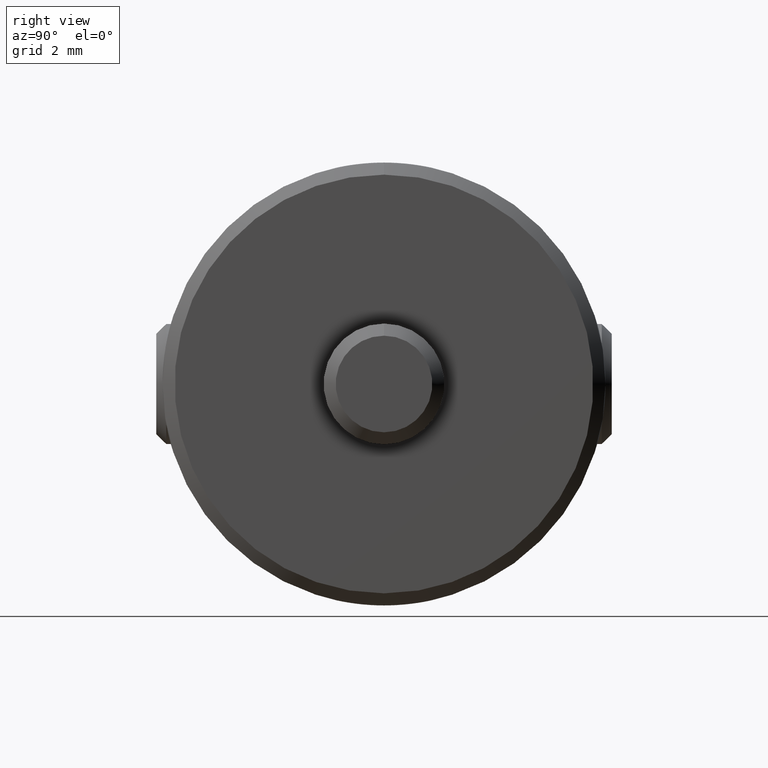
[diagram: clean part render]
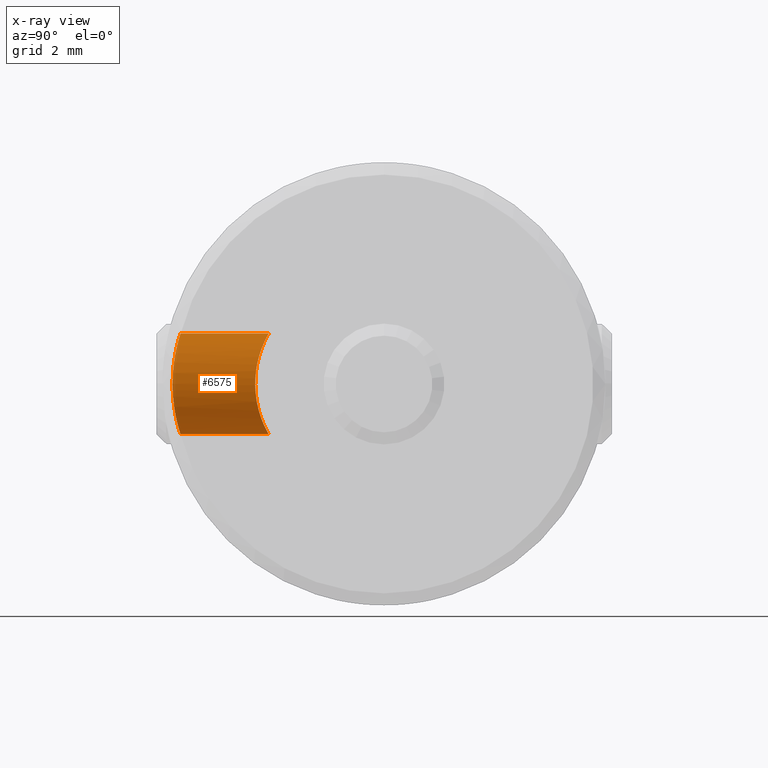
[diagram: x-ray — body ghosted, one internal face saturated and labeled with its STEP entity id]
A machine part, right view, then the same camera in x-ray: the body is ghosted and one INTERNAL B-rep face — a face not visible from any outside direction — is saturated and labeled: STEP entity #6575.
In plain terms, the highlighted cylindrical surface (partial cylindrical patch) has radius 1.25 mm, axis along (-0, 1, -0).
Its self-contained STEP definition (entity closure, byte-faithful):
#28 = CARTESIAN_POINT ( 'NONE',  ( 3.807656620942495795, -5.138820604852585738, 0.9540510737781999762 ) ) ;
#52 = CARTESIAN_POINT ( 'NONE',  ( 3.872746485565921937, -5.152552261291399205, 0.8950206501330392195 ) ) ;
#77 = CARTESIAN_POINT ( 'NONE',  ( 3.863363999183087039, -5.150517279434065898, 0.9039948540260634990 ) ) ;
#105 = CARTESIAN_POINT ( 'NONE',  ( 3.326968187581064829, -5.068879209435863231, 1.209355656351140507 ) ) ;
#253 = CARTESIAN_POINT ( 'NONE',  ( 3.000000000000000888, -5.056071321409050690, 1.250000000000690559 ) ) ;
#273 = CARTESIAN_POINT ( 'NONE',  ( 3.000000000000000000, 5.500000000000000000, -1.249999999999992450 ) ) ;
#299 = EDGE_LOOP ( 'NONE', ( #4257, #6626, #2623, #5924, #1589 ) ) ;
#376 = CARTESIAN_POINT ( 'NONE',  ( 4.092607978984754702, -5.206505076088969730, 0.6075148959232712365 ) ) ;
#399 = B_SPLINE_CURVE_WITH_KNOTS ( 'NONE', 3,
 ( #5138, #1344, #7044, #7738, #5832, #7101, #6413, #2600, #4554, #7715, #5109, #767, #1957, #3247, #3301, #3895, #5184, #7680, #3929, #3824, #1400, #2037, #3871, #2660 ),
 .UNSPECIFIED., .F., .F.,
 ( 4, 2, 2, 2, 2, 2, 2, 2, 2, 2, 2, 4 ),
 ( 0.003975746136738166417, 0.004223791030582452546, 0.004471835924426737809, 0.004967925712115308333, 0.005464015499803877990, 0.005960105287492448514, 0.006456195075181018171, 0.006952284862869587828, 0.007200329756713873958, 0.007448374650558159220, 0.007696419544402444482, 0.007944464438246730612 ),
 .UNSPECIFIED. ) ;
#490 = CARTESIAN_POINT ( 'NONE',  ( 3.081312100431888634, -5.056709579597552739, -1.248029379571401032 ) ) ;
#536 = CARTESIAN_POINT ( 'NONE',  ( 3.163112954550083344, -5.059266375580790509, -1.239993207242670481 ) ) ;
#554 = CARTESIAN_POINT ( 'NONE',  ( 4.207543473384245836, -5.239230510651899486, 0.3254689865355108735 ) ) ;
#561 = LINE ( 'NONE', #273, #3415 ) ;
#588 = CARTESIAN_POINT ( 'NONE',  ( 3.917861725960889441, -5.162668260487365934, -0.8487873995392388737 ) ) ;
#597 = CARTESIAN_POINT ( 'NONE',  ( 3.914015547526260352, -5.161795366773358040, 0.8528285519752671906 ) ) ;
#622 = CARTESIAN_POINT ( 'NONE',  ( 3.704700627875636254, -5.119180918749436593, 1.032480110571077248 ) ) ;
#639 = CARTESIAN_POINT ( 'NONE',  ( 3.961947814056586470, -5.173064103227688726, -0.7982403022763400191 ) ) ;
#674 = CARTESIAN_POINT ( 'NONE',  ( 3.624808031678275366, -5.105747922533864447, 1.082687682323920653 ) ) ;
#712 = B_SPLINE_CURVE_WITH_KNOTS ( 'NONE', 3,
 ( #2984, #5492, #490, #536, #5545, #1701, #7452, #2378, #3654, #2353, #8078, #6162, #8036, #6215, #4913, #6840, #3035, #4246, #7427, #4962, #6245, #3625, #8057, #2421, #4269, #7475, #1117, #5594, #3058, #1744, #6816, #4290, #4938, #1143, #5566, #3082, #4480, #5089, #6887, #4367, #588, #1880, #2500, #2553, #3747, #639, #6313, #8145, #1849, #5701, #6913, #6993, #6367, #1215, #3771, #7577, #5646, #5065, #7524 ),
 .UNSPECIFIED., .F., .F.,
 ( 4, 2, 2, 2, 2, 2, 2, 2, 1, 2, 2, 2, 1, 2, 2, 1, 1, 2, 2, 2, 2, 2, 2, 1, 2, 2, 2, 2, 2, 2, 2, 4 ),
 ( 0.2501103576101096904, 0.2657284602594784384, 0.2813465629088471864, 0.2969646655582159345, 0.3047737168829002252, 0.3125827682075845160, 0.3203918195322688067, 0.3282008708569530975, 0.3360099221816373882, 0.3399144478439795058, 0.3438189735063216790, 0.3516280248310056922, 0.3555325504933476988, 0.3574848133245187576, 0.3594370761556897609, 0.3633416018180317675, 0.3652938646492028818, 0.3662699960647883834, 0.3672461274803738851, 0.3711506531427158362, 0.3731029159738868395, 0.3750551788050578983, 0.3828642301297419115, 0.3867687557920840291, 0.3887210186232549214, 0.3906732814544258692, 0.3984823327791096048, 0.4023868584414514449, 0.4062913841037932849, 0.4375275894025288936, 0.4687637947012644468, 0.5000000000000000000 ),
 .UNSPECIFIED. ) ;
#766 = DIRECTION ( 'NONE',  ( -0.000000000000000000, 1.000000000000000000, -0.000000000000000000 ) ) ;
#767 = CARTESIAN_POINT ( 'NONE',  ( 4.250141954386941201, -3.200070977173732345, 0.1644182679636552180 ) ) ;
#1054 = CARTESIAN_POINT ( 'NONE',  ( 4.162023432357568886, -5.225909643993344567, 0.4610761975432054460 ) ) ;
#1117 = CARTESIAN_POINT ( 'NONE',  ( 3.789290016032976105, -5.135128347746620747, -0.9692994019449499010 ) ) ;
#1124 = LINE ( 'NONE', #6464, #8129 ) ;
#1127 = CARTESIAN_POINT ( 'NONE',  ( 3.901578929474110335, -5.158979647184368744, 0.8658484938869897007 ) ) ;
#1143 = CARTESIAN_POINT ( 'NONE',  ( 3.842843411040724799, -5.146123268424382502, -0.9231139081089994036 ) ) ;
#1176 = CARTESIAN_POINT ( 'NONE',  ( 4.028692055829547591, -5.189635382823536425, 0.7103704597937936516 ) ) ;
#1215 = CARTESIAN_POINT ( 'NONE',  ( 4.121975128649708608, -5.214465385080142568, -0.5573647964946244482 ) ) ;
#1300 = CARTESIAN_POINT ( 'NONE',  ( 3.553116670996967041, -5.095007096507594646, 1.121152473155692109 ) ) ;
#1330 = CARTESIAN_POINT ( 'NONE',  ( 3.841666716284549032, -5.145875230582690918, 0.9241781868662711785 ) ) ;
#1344 = CARTESIAN_POINT ( 'NONE',  ( 3.082747710167413224, -2.865063509461102331, -1.249999999999992450 ) ) ;
#1400 = CARTESIAN_POINT ( 'NONE',  ( 3.330331892373990410, -2.888641686364561423, 1.208389420029013506 ) ) ;
#1589 = ORIENTED_EDGE ( 'NONE', *, *, #4991, .F. ) ;
#1688 = CARTESIAN_POINT ( 'NONE',  ( 4.146883987747501443, -5.221582959937293822, 0.4975407882147522276 ) ) ;
#1701 = CARTESIAN_POINT ( 'NONE',  ( 3.284221456158896046, -5.066195876946151699, -1.217916815122412455 ) ) ;
#1744 = CARTESIAN_POINT ( 'NONE',  ( 3.824729840108255896, -5.142324480682506582, -0.9393472916198954970 ) ) ;
#1750 = DIRECTION ( 'NONE',  ( -0.000000000000000000, 1.000000000000000000, -0.000000000000000000 ) ) ;
#1770 = VERTEX_POINT ( 'NONE', #4663 ) ;
#1807 = CARTESIAN_POINT ( 'NONE',  ( 3.990126188231034821, -5.179926590051992186, 0.7631187995574089111 ) ) ;
#1849 = CARTESIAN_POINT ( 'NONE',  ( 4.010876025426744818, -5.185111522412381824, -0.7353453226970662060 ) ) ;
#1862 = CARTESIAN_POINT ( 'NONE',  ( 3.000000000000000888, -5.056071321409050690, 1.250000000000690559 ) ) ;
#1880 = CARTESIAN_POINT ( 'NONE',  ( 3.938123893321469726, -5.167393408183423631, -0.8261513845412800094 ) ) ;
#1957 = CARTESIAN_POINT ( 'NONE',  ( 4.216490041704343383, -3.182783350853660931, 0.3311210459275517048 ) ) ;
#1973 = CARTESIAN_POINT ( 'NONE',  ( 3.841411229033891761, -5.145821660562155841, 0.9244076045014466558 ) ) ;
#2037 = CARTESIAN_POINT ( 'NONE',  ( 3.168436535701718793, -2.870116157889371244, 1.241351393843918460 ) ) ;
#2339 = CARTESIAN_POINT ( 'NONE',  ( 4.249999554110686972, -5.252108461547980944, -0.001055804463403220775 ) ) ;
#2353 = CARTESIAN_POINT ( 'NONE',  ( 3.440727699179524368, -5.080806614832339640, -1.169906756018876282 ) ) ;
#2364 = CARTESIAN_POINT ( 'NONE',  ( 3.956914220531494664, -5.171847628724582258, 0.8043839592978025976 ) ) ;
#2378 = CARTESIAN_POINT ( 'NONE',  ( 3.382767739529688455, -5.074728574811508075, -1.190120739301776309 ) ) ;
#2416 = CARTESIAN_POINT ( 'NONE',  ( 4.233726797002790754, -5.247122303952698630, 0.2050316371574560925 ) ) ;
#2421 = CARTESIAN_POINT ( 'NONE',  ( 3.762531074504352091, -5.129884075582011427, -0.9905813373319942716 ) ) ;
#2500 = CARTESIAN_POINT ( 'NONE',  ( 3.947409558478436775, -5.169584651494960603, -0.8155024252021979558 ) ) ;
#2534 = CARTESIAN_POINT ( 'NONE',  ( 3.775885884812666848, -5.132449765549828236, 0.9803132155523661684 ) ) ;
#2553 = CARTESIAN_POINT ( 'NONE',  ( 3.955504774976390525, -5.171518899001759983, -0.8059321528118652544 ) ) ;
#2588 = CARTESIAN_POINT ( 'NONE',  ( 3.516025561546593181, -5.089971683752998466, 1.138700373069409855 ) ) ;
#2600 = CARTESIAN_POINT ( 'NONE',  ( 3.997354417713541608, -3.081421157305716196, -0.7704291639371964040 ) ) ;
#2623 = ORIENTED_EDGE ( 'NONE', *, *, #3067, .T. ) ;
#2660 = CARTESIAN_POINT ( 'NONE',  ( 3.000000000000000444, -2.865063509461101443, 1.249999999999992450 ) ) ;
#2835 = B_SPLINE_CURVE_WITH_KNOTS ( 'NONE', 3,
 ( #6441, #6468, #7716, #3897, #2416, #3051, #554, #4977, #3532, #6736, #1054, #1688, #8022, #7411, #3610, #376, #8042, #4258, #4971, #6172, #1176, #5605, #6874, #1807, #4376, #6254, #4277, #2364, #4922, #3068, #597, #1127, #6200, #5049, #52, #77, #5021, #3180, #7619, #1973, #1330, #3810, #4514, #28, #7034, #5761, #2534, #4469, #3838, #3860, #6922, #622, #3205, #7560, #674, #5098, #6400, #3231, #1300, #2588, #7668, #6353, #105, #6973, #4491, #1862 ),
 .UNSPECIFIED., .F., .F.,
 ( 4, 2, 2, 2, 2, 2, 2, 2, 1, 2, 2, 2, 1, 2, 2, 2, 1, 2, 2, 2, 1, 2, 2, 1, 2, 2, 2, 2, 2, 1, 2, 2, 2, 2, 2, 4 ),
 ( 0.5000000000000000000, 0.5156254768371588693, 0.5312509536743176275, 0.5468764305114764968, 0.5546891689300559314, 0.5625019073486353660, 0.5703146457672148006, 0.5781273841857942353, 0.5859401226043736699, 0.5898464918136634427, 0.5937528610229532156, 0.6015655994415328722, 0.6054719686508227561, 0.6074251532554677535, 0.6093783378601128620, 0.6171910762786928517, 0.6210974454879827356, 0.6230506300926277330, 0.6250038146972726194, 0.6289101839065623922, 0.6308633685112072786, 0.6318399608135296663, 0.6328165531158520540, 0.6367229223251417158, 0.6386761069297864912, 0.6406292915344311556, 0.6484420299530099241, 0.6523483991622991418, 0.6562547683715884705, 0.6640675067901671280, 0.6679738759994564568, 0.6718802452087457855, 0.6796929836273244430, 0.6875057220459029894, 0.7187566757202170642, 0.7500076293945312500 ),
 .UNSPECIFIED. ) ;
#2968 = CARTESIAN_POINT ( 'NONE',  ( 3.000000000000000000, 5.500000000000000000, 0.000000000000000000 ) ) ;
#2984 = CARTESIAN_POINT ( 'NONE',  ( 2.999999999999729550, -5.056071311674287472, -1.250000007580655437 ) ) ;
#3035 = CARTESIAN_POINT ( 'NONE',  ( 3.632736929921198676, -5.106954121909887512, -1.078365258629889523 ) ) ;
#3051 = CARTESIAN_POINT ( 'NONE',  ( 4.217982313446505316, -5.242363905027923821, 0.2839698329219662587 ) ) ;
#3058 = CARTESIAN_POINT ( 'NONE',  ( 3.810737402446842559, -5.139436663603153654, -0.9515210348668394769 ) ) ;
#3067 = EDGE_CURVE ( 'NONE', #5356, #8023, #2835, .T. ) ;
#3068 = CARTESIAN_POINT ( 'NONE',  ( 3.925090683982285888, -5.164353183610224107, 0.8407210277196801584 ) ) ;
#3082 = CARTESIAN_POINT ( 'NONE',  ( 3.859699715717308521, -5.149729382894652652, -0.9074374932736730681 ) ) ;
#3180 = CARTESIAN_POINT ( 'NONE',  ( 3.847362316615780209, -5.147083810034930096, 0.9189664423874974730 ) ) ;
#3205 = CARTESIAN_POINT ( 'NONE',  ( 3.677607840668682737, -5.114417677595771039, 1.050628492321191931 ) ) ;
#3231 = CARTESIAN_POINT ( 'NONE',  ( 3.571833599605036103, -5.097676579655311180, 1.111738776829295450 ) ) ;
#3240 = VERTEX_POINT ( 'NONE', #3781 ) ;
#3247 = CARTESIAN_POINT ( 'NONE',  ( 4.089619926984517484, -3.123146039963758280, 0.6342062624574459351 ) ) ;
#3301 = CARTESIAN_POINT ( 'NONE',  ( 3.997467025394757734, -3.081438818106866595, 0.7704700638437366189 ) ) ;
#3320 = CARTESIAN_POINT ( 'NONE',  ( 3.000000000000000444, -2.865063509461101443, 1.249999999999992450 ) ) ;
#3415 = VECTOR ( 'NONE', #4688, 1000.000000000000000 ) ;
#3532 = CARTESIAN_POINT ( 'NONE',  ( 4.183798194335781595, -5.232227265933105720, 0.4019224593537553680 ) ) ;
#3610 = CARTESIAN_POINT ( 'NONE',  ( 4.110700846715007017, -5.211453621862702335, 0.5737683971920868320 ) ) ;
#3625 = CARTESIAN_POINT ( 'NONE',  ( 3.725375853915956714, -5.122893603207396396, -1.018206849511019474 ) ) ;
#3654 = CARTESIAN_POINT ( 'NONE',  ( 3.402014039289615432, -5.076652420314077041, -1.183768319738593755 ) ) ;
#3704 = EDGE_CURVE ( 'NONE', #1770, #5356, #712, .T. ) ;
#3747 = CARTESIAN_POINT ( 'NONE',  ( 3.960644708925802782, -5.172751287160797240, -0.7997985703610099861 ) ) ;
#3771 = CARTESIAN_POINT ( 'NONE',  ( 4.186183732562184900, -5.232813300140283452, -0.4030531705431289469 ) ) ;
#3781 = CARTESIAN_POINT ( 'NONE',  ( 3.000000000000000000, -2.865063509461100555, -1.249999999999992450 ) ) ;
#3810 = CARTESIAN_POINT ( 'NONE',  ( 3.831070338507843065, -5.143639167241100374, 0.9337842419654751591 ) ) ;
#3824 = CARTESIAN_POINT ( 'NONE',  ( 3.408173908128133700, -2.901986727467995575, 1.184276154336619591 ) ) ;
#3838 = CARTESIAN_POINT ( 'NONE',  ( 3.734416860276120076, -5.124584194344423693, 1.011550714583471233 ) ) ;
#3860 = CARTESIAN_POINT ( 'NONE',  ( 3.726417237795551785, -5.123109581050665717, 1.017304959222839367 ) ) ;
#3871 = CARTESIAN_POINT ( 'NONE',  ( 3.084010389090619864, -2.865063509461101887, 1.249999999999992895 ) ) ;
#3895 = CARTESIAN_POINT ( 'NONE',  ( 3.826100497401017986, -3.016709870962550166, 0.9415806469448527727 ) ) ;
#3897 = CARTESIAN_POINT ( 'NONE',  ( 4.240073108715153083, -5.249056146227563779, 0.1625279892944641036 ) ) ;
#3929 = CARTESIAN_POINT ( 'NONE',  ( 3.558205620382070666, -2.934666221898641236, 1.121393077551666062 ) ) ;
#4246 = CARTESIAN_POINT ( 'NONE',  ( 3.659109301147286164, -5.111322010686911277, -1.062160446438533912 ) ) ;
#4257 = ORIENTED_EDGE ( 'NONE', *, *, #6278, .F. ) ;
#4258 = CARTESIAN_POINT ( 'NONE',  ( 4.061815372083927400, -5.198263823541410922, 0.6596647994056984432 ) ) ;
#4269 = CARTESIAN_POINT ( 'NONE',  ( 3.775417331435402701, -5.132394049265904812, -0.9804379945416823450 ) ) ;
#4277 = CARTESIAN_POINT ( 'NONE',  ( 3.968632324462651795, -5.174677863718636139, 0.7901044669665511222 ) ) ;
#4290 = CARTESIAN_POINT ( 'NONE',  ( 3.835145393674208147, -5.144500934991069308, -0.9300753127410114063 ) ) ;
#4367 = CARTESIAN_POINT ( 'NONE',  ( 3.902101958438949136, -5.159061280592683651, -0.8656695617989054181 ) ) ;
#4376 = CARTESIAN_POINT ( 'NONE',  ( 3.980111266428182137, -5.177471163365169105, 0.7758296794850330080 ) ) ;
#4469 = CARTESIAN_POINT ( 'NONE',  ( 3.758905481250016223, -5.129172202471231401, 0.9934658332612100740 ) ) ;
#4480 = CARTESIAN_POINT ( 'NONE',  ( 3.863910405834987571, -5.150639530213904749, -0.9034382892727965686 ) ) ;
#4491 = CARTESIAN_POINT ( 'NONE',  ( 3.081576127392863462, -5.056070286799074331, 1.249999999999992673 ) ) ;
#4514 = CARTESIAN_POINT ( 'NONE',  ( 3.818908238533455179, -5.141112459697279036, 0.9444926003003282222 ) ) ;
#4554 = CARTESIAN_POINT ( 'NONE',  ( 4.089783274520144118, -3.123230000185081678, -0.6335029137292848000 ) ) ;
#4663 = CARTESIAN_POINT ( 'NONE',  ( 2.999999999999729550, -5.056071311674287472, -1.250000007580655437 ) ) ;
#4688 = DIRECTION ( 'NONE',  ( -0.000000000000000000, 1.000000000000000000, -0.000000000000000000 ) ) ;
#4913 = CARTESIAN_POINT ( 'NONE',  ( 3.573622502967627401, -5.097946155738256380, -1.110773296588459580 ) ) ;
#4917 = CYLINDRICAL_SURFACE ( 'NONE', #7059, 1.249999999999992450 ) ;
#4922 = CARTESIAN_POINT ( 'NONE',  ( 3.945541633149629579, -5.169124946947776245, 0.8178444229461879766 ) ) ;
#4938 = CARTESIAN_POINT ( 'NONE',  ( 3.838276332901246590, -5.145159875301253294, -0.9272509415619706319 ) ) ;
#4962 = CARTESIAN_POINT ( 'NONE',  ( 3.687187226812601359, -5.116103874240224947, -1.044200521656686753 ) ) ;
#4971 = CARTESIAN_POINT ( 'NONE',  ( 4.050621068017294490, -5.195321874147710517, 0.6773513884291438858 ) ) ;
#4977 = CARTESIAN_POINT ( 'NONE',  ( 4.190136512149721604, -5.234088913837478430, 0.3827177912972087315 ) ) ;
#4991 = EDGE_CURVE ( 'NONE', #3240, #5448, #399, .T. ) ;
#5021 = CARTESIAN_POINT ( 'NONE',  ( 3.852210849522597513, -5.148119229379418016, 0.9144739967619172072 ) ) ;
#5049 = CARTESIAN_POINT ( 'NONE',  ( 3.889462845152301007, -5.156259156808748578, 0.8783040163585843496 ) ) ;
#5065 = CARTESIAN_POINT ( 'NONE',  ( 4.249930894671394732, -5.252086351867545133, -0.08234383787822772971 ) ) ;
#5089 = CARTESIAN_POINT ( 'NONE',  ( 3.873224101170916978, -5.152669740880413407, -0.8944392662268212391 ) ) ;
#5098 = CARTESIAN_POINT ( 'NONE',  ( 3.607608880434104659, -5.103061986857383658, 1.092432671757505469 ) ) ;
#5109 = CARTESIAN_POINT ( 'NONE',  ( 4.249857119912413772, -3.199928559976018771, -0.1665696633928861747 ) ) ;
#5138 = CARTESIAN_POINT ( 'NONE',  ( 3.000000000000000000, -2.865063509461100555, -1.249999999999992450 ) ) ;
#5184 = CARTESIAN_POINT ( 'NONE',  ( 3.764251658089137198, -2.995112897923289275, 0.9924166061392385441 ) ) ;
#5356 = VERTEX_POINT ( 'NONE', #2339 ) ;
#5448 = VERTEX_POINT ( 'NONE', #3320 ) ;
#5492 = CARTESIAN_POINT ( 'NONE',  ( 3.040508059945440600, -5.056070689342306856, -1.249999999999998002 ) ) ;
#5545 = CARTESIAN_POINT ( 'NONE',  ( 3.205694079574363364, -5.061283757765422386, -1.233609804730433357 ) ) ;
#5566 = CARTESIAN_POINT ( 'NONE',  ( 3.848465179310259554, -5.147313814978891955, -0.9179937151805466211 ) ) ;
#5594 = CARTESIAN_POINT ( 'NONE',  ( 3.799678694838365178, -5.137202227211373540, -0.9607779270478506994 ) ) ;
#5605 = CARTESIAN_POINT ( 'NONE',  ( 4.017635838157811001, -5.186808547552691273, 0.7261745369761850588 ) ) ;
#5646 = CARTESIAN_POINT ( 'NONE',  ( 4.241955542736087992, -5.249610279228214438, -0.1641342870639694029 ) ) ;
#5701 = CARTESIAN_POINT ( 'NONE',  ( 4.016664799194865410, -5.186576113127123300, -0.7273140498139396559 ) ) ;
#5761 = CARTESIAN_POINT ( 'NONE',  ( 3.797761929248362200, -5.136820333140644124, 0.9623450321580624411 ) ) ;
#5784 = FACE_OUTER_BOUND ( 'NONE', #299, .T. ) ;
#5832 = CARTESIAN_POINT ( 'NONE',  ( 3.407317509417352230, -2.901798691018484533, -1.184638656238071741 ) ) ;
#5924 = ORIENTED_EDGE ( 'NONE', *, *, #7983, .T. ) ;
#6162 = CARTESIAN_POINT ( 'NONE',  ( 3.497749207777758329, -5.087618450338318610, -1.146790465971641471 ) ) ;
#6172 = CARTESIAN_POINT ( 'NONE',  ( 4.043927586768971238, -5.193577591077632505, 0.6876035031552072407 ) ) ;
#6200 = CARTESIAN_POINT ( 'NONE',  ( 3.892974909626642166, -5.157045189069012991, 0.8747193785525412268 ) ) ;
#6215 = CARTESIAN_POINT ( 'NONE',  ( 3.552980380579458419, -5.094988589068216278, -1.121218174083350450 ) ) ;
#6245 = CARTESIAN_POINT ( 'NONE',  ( 3.709635870293991555, -5.120044924253861929, -1.029194339316971796 ) ) ;
#6254 = CARTESIAN_POINT ( 'NONE',  ( 3.973299273933542874, -5.175809375186269712, 0.7843585337775975663 ) ) ;
#6278 = EDGE_CURVE ( 'NONE', #1770, #3240, #561, .T. ) ;
#6313 = CARTESIAN_POINT ( 'NONE',  ( 3.979679867337001742, -5.177343596772756129, -0.7766763752543982546 ) ) ;
#6353 = CARTESIAN_POINT ( 'NONE',  ( 3.402037997722090257, -5.075945861740525977, 1.186549477641351880 ) ) ;
#6367 = CARTESIAN_POINT ( 'NONE',  ( 4.086526269705190728, -5.204593458637511993, -0.6240909736464852475 ) ) ;
#6400 = CARTESIAN_POINT ( 'NONE',  ( 3.600087035267704128, -5.101908469532509649, 1.096590052612822053 ) ) ;
#6413 = CARTESIAN_POINT ( 'NONE',  ( 3.770283028601655317, -2.995601628785430126, -0.9974672861933593371 ) ) ;
#6441 = CARTESIAN_POINT ( 'NONE',  ( 4.249999554110686972, -5.252108461547980944, -0.001055804463403220775 ) ) ;
#6464 = CARTESIAN_POINT ( 'NONE',  ( 3.000000000000000000, 5.500000000000000000, 1.249999999999992450 ) ) ;
#6468 = CARTESIAN_POINT ( 'NONE',  ( 4.250033900039331236, -5.252119521607812480, 0.03960740257835840966 ) ) ;
#6575 = ADVANCED_FACE ( 'NONE', ( #5784 ), #4917, .F. ) ;
#6626 = ORIENTED_EDGE ( 'NONE', *, *, #3704, .T. ) ;
#6736 = CARTESIAN_POINT ( 'NONE',  ( 4.169989315105619987, -5.228208405525242242, 0.4405051994974699126 ) ) ;
#6816 = CARTESIAN_POINT ( 'NONE',  ( 3.830950082677364588, -5.143622325421292274, -0.9338253991212797089 ) ) ;
#6840 = CARTESIAN_POINT ( 'NONE',  ( 3.607075430473650091, -5.102953611366411124, -1.092849264098243012 ) ) ;
#6874 = CARTESIAN_POINT ( 'NONE',  ( 3.999546905522267881, -5.182270249994252787, 0.7506723805860813226 ) ) ;
#6887 = CARTESIAN_POINT ( 'NONE',  ( 3.879190758319937427, -5.153981453936025581, -0.8885750355696345748 ) ) ;
#6913 = CARTESIAN_POINT ( 'NONE',  ( 4.027767873432842372, -5.189406411875295611, -0.7115379394790021239 ) ) ;
#6922 = CARTESIAN_POINT ( 'NONE',  ( 3.710773352628081501, -5.120269799960179391, 1.028295981038407136 ) ) ;
#6973 = CARTESIAN_POINT ( 'NONE',  ( 3.163483105931014006, -5.058633974766397756, 1.242063836247434994 ) ) ;
#6993 = CARTESIAN_POINT ( 'NONE',  ( 4.032161755415202720, -5.190534044660365609, -0.7051664692675271295 ) ) ;
#7034 = CARTESIAN_POINT ( 'NONE',  ( 3.800365454447342639, -5.137344891111485623, 0.9601759255766015855 ) ) ;
#7044 = CARTESIAN_POINT ( 'NONE',  ( 3.167064545487901395, -2.870009906054213022, -1.241535497329311788 ) ) ;
#7059 = AXIS2_PLACEMENT_3D ( 'NONE', #2968, #1750, #7405 ) ;
#7101 = CARTESIAN_POINT ( 'NONE',  ( 3.635072175223577062, -2.951412080653863956, -1.089168733292893876 ) ) ;
#7405 = DIRECTION ( 'NONE',  ( 0.000000000000000000, 0.000000000000000000, 1.000000000000000000 ) ) ;
#7411 = CARTESIAN_POINT ( 'NONE',  ( 4.121156744419188556, -5.214348283208199319, 0.5531090811772785276 ) ) ;
#7427 = CARTESIAN_POINT ( 'NONE',  ( 3.676830069133934842, -5.114315576145713749, -1.050957155336753823 ) ) ;
#7452 = CARTESIAN_POINT ( 'NONE',  ( 3.325469710653436550, -5.069416793573489066, -1.207544423038229064 ) ) ;
#7475 = CARTESIAN_POINT ( 'NONE',  ( 3.784078345875566907, -5.134095029089889017, -0.9735254729899711634 ) ) ;
#7524 = CARTESIAN_POINT ( 'NONE',  ( 4.249999554110686972, -5.252108461547980944, -0.001055804463403220775 ) ) ;
#7560 = CARTESIAN_POINT ( 'NONE',  ( 3.650862054794357103, -5.109899215655083538, 1.067521256442440558 ) ) ;
#7577 = CARTESIAN_POINT ( 'NONE',  ( 4.209336261106690458, -5.239749796758307099, -0.3269548009975988268 ) ) ;
#7619 = CARTESIAN_POINT ( 'NONE',  ( 3.843639940925803078, -5.146293799214698872, 0.9223740703636110760 ) ) ;
#7668 = CARTESIAN_POINT ( 'NONE',  ( 3.498855887003850640, -5.087752631918165847, 1.146334350182372841 ) ) ;
#7680 = CARTESIAN_POINT ( 'NONE',  ( 3.630738978149000928, -2.954172636662570461, 1.082192061732330401 ) ) ;
#7715 = CARTESIAN_POINT ( 'NONE',  ( 4.215610503302445800, -3.182362774477648593, -0.3335335536166079695 ) ) ;
#7716 = CARTESIAN_POINT ( 'NONE',  ( 4.248082700598064143, -5.251511270555694999, 0.08053716366006101468 ) ) ;
#7738 = CARTESIAN_POINT ( 'NONE',  ( 3.328958807448302082, -2.888434675061639201, -1.208762613787343509 ) ) ;
#7983 = EDGE_CURVE ( 'NONE', #8023, #5448, #1124, .T. ) ;
#8022 = CARTESIAN_POINT ( 'NONE',  ( 4.138728140728324512, -5.219270687780262818, 0.5159654278639449476 ) ) ;
#8023 = VERTEX_POINT ( 'NONE', #253 ) ;
#8036 = CARTESIAN_POINT ( 'NONE',  ( 3.516039519667189417, -5.089973921472349616, -1.138692543816047342 ) ) ;
#8042 = CARTESIAN_POINT ( 'NONE',  ( 4.078034818531842909, -5.202559828505251893, 0.6333012171021894510 ) ) ;
#8057 = CARTESIAN_POINT ( 'NONE',  ( 3.749980573212746915, -5.127498590054360150, -1.000066482421208880 ) ) ;
#8078 = CARTESIAN_POINT ( 'NONE',  ( 3.461621819389014920, -5.083211233398061246, -1.161803745281799305 ) ) ;
#8129 = VECTOR ( 'NONE', #766, 1000.000000000000000 ) ;
#8145 = CARTESIAN_POINT ( 'NONE',  ( 3.992758931476665829, -5.180569426246181663, -0.7598302662789044870 ) ) ;